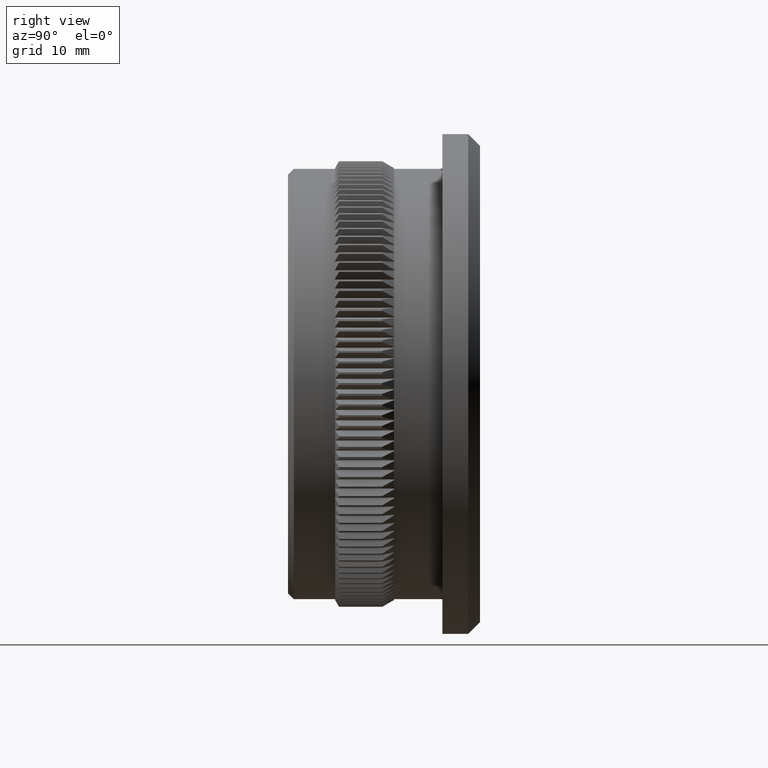
[diagram: clean part render]
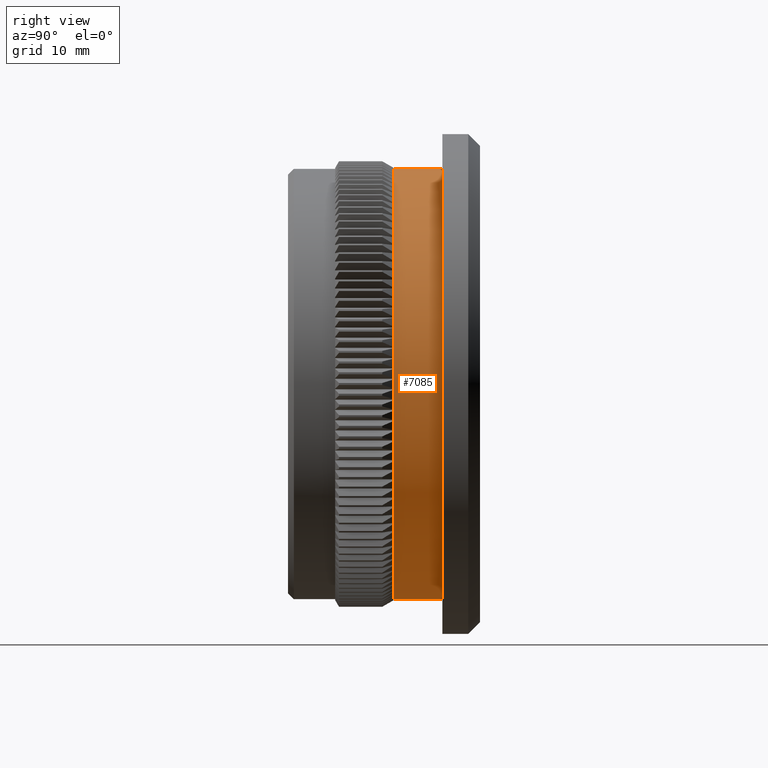
[diagram: same view with one face highlighted and labeled with its STEP entity id]
A machine part, right view. The second image highlights one B-rep face of the part: STEP entity #7085.
In plain terms, the highlighted cylindrical surface (partial cylindrical patch) has radius 18.25 mm, axis along (-0, -1, -0).
Its self-contained STEP definition (entity closure, byte-faithful):
#16 = EDGE_CURVE ( 'NONE', #13588, #38691, #28663, .T. ) ;
#77 = DIRECTION ( 'NONE',  ( 0.0000000000000000000, 0.0000000000000000000, -1.000000000000000000 ) ) ;
#107 = DIRECTION ( 'NONE',  ( -0.0000000000000000000, -1.000000000000000000, -0.0000000000000000000 ) ) ;
#271 = ORIENTED_EDGE ( 'NONE', *, *, #12573, .T. ) ;
#337 = ORIENTED_EDGE ( 'NONE', *, *, #30912, .F. ) ;
#343 = DIRECTION ( 'NONE',  ( 0.0000000000000000000, 0.0000000000000000000, -1.000000000000000000 ) ) ;
#374 = DIRECTION ( 'NONE',  ( 0.0000000000000000000, 0.0000000000000000000, -1.000000000000000000 ) ) ;
#470 = VERTEX_POINT ( 'NONE', #5012 ) ;
#518 = ORIENTED_EDGE ( 'NONE', *, *, #30176, .F. ) ;
#567 = EDGE_CURVE ( 'NONE', #13295, #23457, #42540, .T. ) ;
#744 = VERTEX_POINT ( 'NONE', #30139 ) ;
#748 = CARTESIAN_POINT ( 'NONE',  ( 13.36390316540948600, 9.000000000000010700, -12.42853942285892400 ) ) ;
#806 = VERTEX_POINT ( 'NONE', #17642 ) ;
#850 = DIRECTION ( 'NONE',  ( 0.0000000000000000000, 0.0000000000000000000, -1.000000000000000000 ) ) ;
#982 = DIRECTION ( 'NONE',  ( -0.0000000000000000000, -1.000000000000000000, -0.0000000000000000000 ) ) ;
#1030 = DIRECTION ( 'NONE',  ( 0.0000000000000000000, 0.0000000000000000000, -1.000000000000000000 ) ) ;
#1032 = DIRECTION ( 'NONE',  ( 0.0000000000000000000, 0.0000000000000000000, -1.000000000000000000 ) ) ;
#1033 = CIRCLE ( 'NONE', #39811, 18.25000000000000000 ) ;
#1115 = ORIENTED_EDGE ( 'NONE', *, *, #19807, .F. ) ;
#1455 = AXIS2_PLACEMENT_3D ( 'NONE', #19332, #2383, #5475 ) ;
#1755 = VERTEX_POINT ( 'NONE', #30516 ) ;
#1781 = EDGE_CURVE ( 'NONE', #31438, #22046, #23745, .T. ) ;
#1872 = AXIS2_PLACEMENT_3D ( 'NONE', #38058, #20907, #850 ) ;
#2034 = CARTESIAN_POINT ( 'NONE',  ( 15.94991659543385000, 9.000000000000012400, 8.869197291677764400 ) ) ;
#2124 = AXIS2_PLACEMENT_3D ( 'NONE', #14407, #24797, #7973 ) ;
#2222 = CIRCLE ( 'NONE', #26717, 18.25000000000000000 ) ;
#2325 = CARTESIAN_POINT ( 'NONE',  ( 4.367510873248076700, 9.000000000000010700, -17.71968816802541700 ) ) ;
#2383 = DIRECTION ( 'NONE',  ( -0.0000000000000000000, -1.000000000000000000, -0.0000000000000000000 ) ) ;
#2393 = DIRECTION ( 'NONE',  ( 0.0000000000000000000, 0.0000000000000000000, -1.000000000000000000 ) ) ;
#2512 = CARTESIAN_POINT ( 'NONE',  ( 16.73145756452753800, 9.000000000000012400, 7.288403650074150700 ) ) ;
#2514 = AXIS2_PLACEMENT_3D ( 'NONE', #16076, #36462, #5179 ) ;
#2571 = ORIENTED_EDGE ( 'NONE', *, *, #42584, .F. ) ;
#2776 = AXIS2_PLACEMENT_3D ( 'NONE', #32191, #42190, #11778 ) ;
#2789 = LINE ( 'NONE', #38701, #23469 ) ;
#2893 = ORIENTED_EDGE ( 'NONE', *, *, #12304, .F. ) ;
#2929 = CARTESIAN_POINT ( 'NONE',  ( 6.057318319595791100, 9.000000000000010700, -17.21544059195376200 ) ) ;
#2997 = VERTEX_POINT ( 'NONE', #7744 ) ;
#3071 = CARTESIAN_POINT ( 'NONE',  ( 0.0000000000000000000, 9.000000000000012400, 0.0000000000000000000 ) ) ;
#3084 = AXIS2_PLACEMENT_3D ( 'NONE', #24391, #27517, #343 ) ;
#3137 = ORIENTED_EDGE ( 'NONE', *, *, #7671, .F. ) ;
#3258 = CARTESIAN_POINT ( 'NONE',  ( 18.20205998186972700, 9.000000000000010700, -1.321935102951964800 ) ) ;
#3261 = ORIENTED_EDGE ( 'NONE', *, *, #25742, .F. ) ;
#3324 = CARTESIAN_POINT ( 'NONE',  ( 6.881980860811988300, 9.000000000000010700, -16.90268734347936400 ) ) ;
#3347 = VERTEX_POINT ( 'NONE', #27193 ) ;
#3360 = CARTESIAN_POINT ( 'NONE',  ( 0.0000000000000000000, 9.000000000000012400, 0.0000000000000000000 ) ) ;
#3375 = VERTEX_POINT ( 'NONE', #16541 ) ;
#3377 = EDGE_CURVE ( 'NONE', #34957, #31486, #19434, .T. ) ;
#3444 = ORIENTED_EDGE ( 'NONE', *, *, #25637, .F. ) ;
#3460 = DIRECTION ( 'NONE',  ( 0.0000000000000000000, 0.0000000000000000000, -1.000000000000000000 ) ) ;
#3833 = VERTEX_POINT ( 'NONE', #9845 ) ;
#3889 = DIRECTION ( 'NONE',  ( 0.0000000000000000000, 0.0000000000000000000, -1.000000000000000000 ) ) ;
#3891 = DIRECTION ( 'NONE',  ( -0.0000000000000000000, -1.000000000000000000, -0.0000000000000000000 ) ) ;
#3980 = CARTESIAN_POINT ( 'NONE',  ( 0.0000000000000000000, 13.10000000000001200, -18.24999999999999600 ) ) ;
#4013 = VERTEX_POINT ( 'NONE', #19631 ) ;
#4019 = DIRECTION ( 'NONE',  ( 0.0000000000000000000, 0.0000000000000000000, -1.000000000000000000 ) ) ;
#4098 = EDGE_CURVE ( 'NONE', #5564, #8907, #34276, .T. ) ;
#4179 = CARTESIAN_POINT ( 'NONE',  ( 11.42787985507404600, 9.000000000000010700, 14.22905696165396000 ) ) ;
#4253 = ORIENTED_EDGE ( 'NONE', *, *, #14989, .F. ) ;
#4282 = CARTESIAN_POINT ( 'NONE',  ( 13.94876189996184300, 9.000000000000010700, -11.76837038243498800 ) ) ;
#4284 = AXIS2_PLACEMENT_3D ( 'NONE', #42932, #9095, #39647 ) ;
#4305 = CARTESIAN_POINT ( 'NONE',  ( 17.60897884851976200, 9.000000000000012400, 4.794409652124421900 ) ) ;
#4327 = DIRECTION ( 'NONE',  ( -0.0000000000000000000, -1.000000000000000000, -0.0000000000000000000 ) ) ;
#4365 = ORIENTED_EDGE ( 'NONE', *, *, #23403, .F. ) ;
#4404 = ORIENTED_EDGE ( 'NONE', *, *, #6890, .F. ) ;
#4429 = DIRECTION ( 'NONE',  ( 0.0000000000000000000, 0.0000000000000000000, -1.000000000000000000 ) ) ;
#4556 = CARTESIAN_POINT ( 'NONE',  ( 0.0000000000000000000, 9.000000000000012400, 0.0000000000000000000 ) ) ;
#4590 = CARTESIAN_POINT ( 'NONE',  ( 17.60897884851986500, 9.000000000000012400, -4.794409652124029400 ) ) ;
#4641 = VERTEX_POINT ( 'NONE', #6313 ) ;
#4676 = ORIENTED_EDGE ( 'NONE', *, *, #3377, .F. ) ;
#4741 = CIRCLE ( 'NONE', #43234, 18.25000000000000000 ) ;
#4770 = ORIENTED_EDGE ( 'NONE', *, *, #34346, .F. ) ;
#4824 = CARTESIAN_POINT ( 'NONE',  ( 2.636925154638434700, 9.000000000000010700, -18.05849178998166600 ) ) ;
#4842 = DIRECTION ( 'NONE',  ( -0.0000000000000000000, -1.000000000000000000, -0.0000000000000000000 ) ) ;
#4853 = ORIENTED_EDGE ( 'NONE', *, *, #25097, .F. ) ;
#4870 = CARTESIAN_POINT ( 'NONE',  ( 17.98950097700266000, 9.000000000000010700, -3.072516004583262900 ) ) ;
#4888 = CIRCLE ( 'NONE', #27488, 18.25000000000000000 ) ;
#4907 = DIRECTION ( 'NONE',  ( 0.0000000000000000000, 0.0000000000000000000, -1.000000000000000000 ) ) ;
#4971 = AXIS2_PLACEMENT_3D ( 'NONE', #8420, #25245, #15317 ) ;
#4996 = DIRECTION ( 'NONE',  ( 0.0000000000000000000, 0.0000000000000000000, -1.000000000000000000 ) ) ;
#5012 = CARTESIAN_POINT ( 'NONE',  ( 5.218508630776227600, 9.000000000000010700, -17.48798638124224400 ) ) ;
#5081 = DIRECTION ( 'NONE',  ( -0.0000000000000000000, -1.000000000000000000, -0.0000000000000000000 ) ) ;
#5140 = CIRCLE ( 'NONE', #15951, 18.25000000000000000 ) ;
#5145 = CIRCLE ( 'NONE', #38885, 18.25000000000000000 ) ;
#5179 = DIRECTION ( 'NONE',  ( 0.0000000000000000000, 0.0000000000000000000, -1.000000000000000000 ) ) ;
#5245 = EDGE_CURVE ( 'NONE', #28468, #22867, #22457, .T. ) ;
#5280 = CARTESIAN_POINT ( 'NONE',  ( 0.0000000000000000000, 9.000000000000012400, 0.0000000000000000000 ) ) ;
#5286 = DIRECTION ( 'NONE',  ( -0.0000000000000000000, -1.000000000000000000, -0.0000000000000000000 ) ) ;
#5326 = DIRECTION ( 'NONE',  ( 0.0000000000000000000, 0.0000000000000000000, -1.000000000000000000 ) ) ;
#5388 = CIRCLE ( 'NONE', #15828, 18.25000000000000000 ) ;
#5400 = ORIENTED_EDGE ( 'NONE', *, *, #5245, .F. ) ;
#5475 = DIRECTION ( 'NONE',  ( 0.0000000000000000000, 0.0000000000000000000, -1.000000000000000000 ) ) ;
#5478 = ORIENTED_EDGE ( 'NONE', *, *, #567, .F. ) ;
#5564 = VERTEX_POINT ( 'NONE', #19867 ) ;
#5587 = CARTESIAN_POINT ( 'NONE',  ( 0.0000000000000000000, 9.000000000000012400, 0.0000000000000000000 ) ) ;
#5605 = AXIS2_PLACEMENT_3D ( 'NONE', #8488, #25909, #21577 ) ;
#5655 = AXIS2_PLACEMENT_3D ( 'NONE', #25654, #5286, #29095 ) ;
#5772 = CIRCLE ( 'NONE', #5605, 18.25000000000000000 ) ;
#5900 = CARTESIAN_POINT ( 'NONE',  ( 0.8817191763406456700, 9.000000000000010700, -18.22868813968996100 ) ) ;
#6282 = CARTESIAN_POINT ( 'NONE',  ( 0.0000000000000000000, 9.000000000000012400, 0.0000000000000000000 ) ) ;
#6313 = CARTESIAN_POINT ( 'NONE',  ( 1.761379056689640600, 9.000000000000010700, 18.16480233359711600 ) ) ;
#6605 = ORIENTED_EDGE ( 'NONE', *, *, #36889, .F. ) ;
#6619 = DIRECTION ( 'NONE',  ( -0.0000000000000000000, -1.000000000000000000, -0.0000000000000000000 ) ) ;
#6630 = EDGE_CURVE ( 'NONE', #15829, #37151, #5388, .T. ) ;
#6635 = DIRECTION ( 'NONE',  ( 0.0000000000000000000, 0.0000000000000000000, -1.000000000000000000 ) ) ;
#6648 = AXIS2_PLACEMENT_3D ( 'NONE', #13367, #34056, #13684 ) ;
#6731 = EDGE_CURVE ( 'NONE', #22586, #3347, #42710, .T. ) ;
#6783 = DIRECTION ( 'NONE',  ( -0.0000000000000000000, -1.000000000000000000, -0.0000000000000000000 ) ) ;
#6854 = AXIS2_PLACEMENT_3D ( 'NONE', #5280, #42659, #42511 ) ;
#6890 = EDGE_CURVE ( 'NONE', #38066, #9116, #4888, .T. ) ;
#6891 = DIRECTION ( 'NONE',  ( -0.0000000000000000000, -1.000000000000000000, -0.0000000000000000000 ) ) ;
#6909 = CARTESIAN_POINT ( 'NONE',  ( 1.156482317317873700E-014, 9.000000000000010700, -18.25000000000000400 ) ) ;
#7013 = AXIS2_PLACEMENT_3D ( 'NONE', #37137, #6891, #43819 ) ;
#7042 = AXIS2_PLACEMENT_3D ( 'NONE', #33463, #13357, #36904 ) ;
#7085 = ADVANCED_FACE ( 'NONE', ( #35805 ), #8591, .T. ) ;
#7412 = CARTESIAN_POINT ( 'NONE',  ( 1.761379056690044200, 9.000000000000010700, -18.16480233359707300 ) ) ;
#7491 = AXIS2_PLACEMENT_3D ( 'NONE', #6282, #40964, #3889 ) ;
#7536 = CARTESIAN_POINT ( 'NONE',  ( 0.0000000000000000000, 9.000000000000012400, 0.0000000000000000000 ) ) ;
#7543 = AXIS2_PLACEMENT_3D ( 'NONE', #26360, #26645, #40389 ) ;
#7551 = CARTESIAN_POINT ( 'NONE',  ( 0.0000000000000000000, 9.000000000000012400, 0.0000000000000000000 ) ) ;
#7619 = CIRCLE ( 'NONE', #21354, 18.25000000000000000 ) ;
#7671 = EDGE_CURVE ( 'NONE', #8907, #31396, #22929, .T. ) ;
#7744 = CARTESIAN_POINT ( 'NONE',  ( 17.98950097700259900, 9.000000000000012400, 3.072516004583662600 ) ) ;
#7799 = EDGE_CURVE ( 'NONE', #23704, #806, #26107, .T. ) ;
#7885 = DIRECTION ( 'NONE',  ( 0.0000000000000000000, 0.0000000000000000000, -1.000000000000000000 ) ) ;
#7973 = DIRECTION ( 'NONE',  ( 0.0000000000000000000, 0.0000000000000000000, -1.000000000000000000 ) ) ;
#8181 = AXIS2_PLACEMENT_3D ( 'NONE', #38834, #14858, #4429 ) ;
#8243 = EDGE_CURVE ( 'NONE', #28902, #30934, #21248, .T. ) ;
#8262 = AXIS2_PLACEMENT_3D ( 'NONE', #42351, #11521, #8683 ) ;
#8420 = CARTESIAN_POINT ( 'NONE',  ( 0.0000000000000000000, 9.000000000000012400, 0.0000000000000000000 ) ) ;
#8431 = EDGE_CURVE ( 'NONE', #30934, #17959, #29822, .T. ) ;
#8446 = AXIS2_PLACEMENT_3D ( 'NONE', #9088, #18793, #22463 ) ;
#8465 = CIRCLE ( 'NONE', #13987, 18.25000000000000000 ) ;
#8488 = CARTESIAN_POINT ( 'NONE',  ( 0.0000000000000000000, 9.000000000000012400, 0.0000000000000000000 ) ) ;
#8500 = CIRCLE ( 'NONE', #12127, 18.25000000000000000 ) ;
#8563 = ORIENTED_EDGE ( 'NONE', *, *, #18140, .F. ) ;
#8585 = EDGE_CURVE ( 'NONE', #40925, #1755, #28175, .T. ) ;
#8591 = CYLINDRICAL_SURFACE ( 'NONE', #32074, 18.24999999999999600 ) ;
#8620 = EDGE_CURVE ( 'NONE', #744, #14084, #8500, .T. ) ;
#8683 = DIRECTION ( 'NONE',  ( 0.0000000000000000000, 0.0000000000000000000, -1.000000000000000000 ) ) ;
#8709 = VERTEX_POINT ( 'NONE', #13083 ) ;
#8873 = CARTESIAN_POINT ( 'NONE',  ( 12.10198851289434300, 9.000000000000010700, 13.66032115412274600 ) ) ;
#8907 = VERTEX_POINT ( 'NONE', #36228 ) ;
#8911 = DIRECTION ( 'NONE',  ( 0.0000000000000000000, 0.0000000000000000000, -1.000000000000000000 ) ) ;
#8928 = AXIS2_PLACEMENT_3D ( 'NONE', #43730, #16975, #40772 ) ;
#9038 = ORIENTED_EDGE ( 'NONE', *, *, #9431, .F. ) ;
#9071 = CARTESIAN_POINT ( 'NONE',  ( 14.50104265477612100, 9.000000000000010700, -11.08071576769134500 ) ) ;
#9088 = CARTESIAN_POINT ( 'NONE',  ( 0.0000000000000000000, 9.000000000000012400, 0.0000000000000000000 ) ) ;
#9095 = DIRECTION ( 'NONE',  ( -0.0000000000000000000, -1.000000000000000000, -0.0000000000000000000 ) ) ;
#9116 = VERTEX_POINT ( 'NONE', #4305 ) ;
#9259 = DIRECTION ( 'NONE',  ( -0.0000000000000000000, -1.000000000000000000, -0.0000000000000000000 ) ) ;
#9431 = EDGE_CURVE ( 'NONE', #4013, #24791, #12538, .T. ) ;
#9707 = AXIS2_PLACEMENT_3D ( 'NONE', #14797, #39064, #42194 ) ;
#9721 = VERTEX_POINT ( 'NONE', #3980 ) ;
#9845 = CARTESIAN_POINT ( 'NONE',  ( 2.234980408443918800E-015, 13.10000000000001200, 18.24999999999999600 ) ) ;
#9865 = CARTESIAN_POINT ( 'NONE',  ( 13.94876189996158900, 9.000000000000010700, 11.76837038243528400 ) ) ;
#9886 = DIRECTION ( 'NONE',  ( 0.0000000000000000000, 0.0000000000000000000, -1.000000000000000000 ) ) ;
#9941 = CARTESIAN_POINT ( 'NONE',  ( 8.481197889798915300, 9.000000000000010700, -16.15957246817101400 ) ) ;
#10018 = DIRECTION ( 'NONE',  ( 0.0000000000000000000, 0.0000000000000000000, -1.000000000000000000 ) ) ;
#10114 = DIRECTION ( 'NONE',  ( -0.0000000000000000000, -1.000000000000000000, -0.0000000000000000000 ) ) ;
#10169 = DIRECTION ( 'NONE',  ( -0.0000000000000000000, -1.000000000000000000, -0.0000000000000000000 ) ) ;
#10236 = ORIENTED_EDGE ( 'NONE', *, *, #17520, .F. ) ;
#10553 = DIRECTION ( 'NONE',  ( -0.0000000000000000000, -1.000000000000000000, -0.0000000000000000000 ) ) ;
#10604 = VERTEX_POINT ( 'NONE', #5900 ) ;
#10673 = DIRECTION ( 'NONE',  ( 0.0000000000000000000, 0.0000000000000000000, -1.000000000000000000 ) ) ;
#10683 = CARTESIAN_POINT ( 'NONE',  ( 0.0000000000000000000, 9.000000000000012400, 0.0000000000000000000 ) ) ;
#10726 = DIRECTION ( 'NONE',  ( 0.0000000000000000000, 0.0000000000000000000, -1.000000000000000000 ) ) ;
#10848 = DIRECTION ( 'NONE',  ( 0.0000000000000000000, 0.0000000000000000000, -1.000000000000000000 ) ) ;
#11176 = VERTEX_POINT ( 'NONE', #19704 ) ;
#11257 = DIRECTION ( 'NONE',  ( -0.0000000000000000000, -1.000000000000000000, -0.0000000000000000000 ) ) ;
#11521 = DIRECTION ( 'NONE',  ( -0.0000000000000000000, -1.000000000000000000, -0.0000000000000000000 ) ) ;
#11633 = CIRCLE ( 'NONE', #20659, 18.25000000000000000 ) ;
#11655 = DIRECTION ( 'NONE',  ( -0.0000000000000000000, -1.000000000000000000, -0.0000000000000000000 ) ) ;
#11705 = VERTEX_POINT ( 'NONE', #34976 ) ;
#11721 = AXIS2_PLACEMENT_3D ( 'NONE', #14280, #11257, #24497 ) ;
#11778 = DIRECTION ( 'NONE',  ( 0.0000000000000000000, 0.0000000000000000000, -1.000000000000000000 ) ) ;
#11781 = CARTESIAN_POINT ( 'NONE',  ( 6.881980860811620600, 9.000000000000010700, 16.90268734347951700 ) ) ;
#11850 = AXIS2_PLACEMENT_3D ( 'NONE', #14446, #43761, #33947 ) ;
#11994 = DIRECTION ( 'NONE',  ( -0.0000000000000000000, -1.000000000000000000, -0.0000000000000000000 ) ) ;
#12127 = AXIS2_PLACEMENT_3D ( 'NONE', #36192, #15803, #39599 ) ;
#12257 = AXIS2_PLACEMENT_3D ( 'NONE', #34748, #41321, #41028 ) ;
#12304 = EDGE_CURVE ( 'NONE', #23733, #4013, #39506, .T. ) ;
#12360 = EDGE_CURVE ( 'NONE', #32399, #17915, #15555, .T. ) ;
#12385 = VERTEX_POINT ( 'NONE', #7412 ) ;
#12410 = EDGE_CURVE ( 'NONE', #31396, #21885, #30409, .T. ) ;
#12450 = EDGE_CURVE ( 'NONE', #19939, #23663, #2222, .T. ) ;
#12535 = AXIS2_PLACEMENT_3D ( 'NONE', #15768, #42851, #39566 ) ;
#12538 = CIRCLE ( 'NONE', #1455, 18.25000000000000000 ) ;
#12573 = EDGE_CURVE ( 'NONE', #3833, #17915, #2789, .T. ) ;
#12638 = EDGE_CURVE ( 'NONE', #3375, #40925, #34649, .T. ) ;
#12718 = CARTESIAN_POINT ( 'NONE',  ( 15.94991659543403600, 9.000000000000010700, -8.869197291677407300 ) ) ;
#12751 = CARTESIAN_POINT ( 'NONE',  ( 12.74783241579293900, 9.000000000000010700, 13.05968103358037000 ) ) ;
#12774 = EDGE_CURVE ( 'NONE', #17959, #2997, #20793, .T. ) ;
#12790 = ORIENTED_EDGE ( 'NONE', *, *, #12410, .F. ) ;
#12939 = ORIENTED_EDGE ( 'NONE', *, *, #8243, .F. ) ;
#13083 = CARTESIAN_POINT ( 'NONE',  ( 16.35979160564649600, 9.000000000000010700, 8.088245707186359800 ) ) ;
#13229 = ORIENTED_EDGE ( 'NONE', *, *, #22450, .F. ) ;
#13295 = VERTEX_POINT ( 'NONE', #748 ) ;
#13327 = DIRECTION ( 'NONE',  ( 0.0000000000000000000, 0.0000000000000000000, -1.000000000000000000 ) ) ;
#13357 = DIRECTION ( 'NONE',  ( -0.0000000000000000000, -1.000000000000000000, -0.0000000000000000000 ) ) ;
#13367 = CARTESIAN_POINT ( 'NONE',  ( 0.0000000000000000000, 13.10000000000001200, 0.0000000000000000000 ) ) ;
#13542 = DIRECTION ( 'NONE',  ( 0.0000000000000000000, 0.0000000000000000000, -1.000000000000000000 ) ) ;
#13588 = VERTEX_POINT ( 'NONE', #39581 ) ;
#13650 = AXIS2_PLACEMENT_3D ( 'NONE', #34412, #17467, #23951 ) ;
#13684 = DIRECTION ( 'NONE',  ( 0.0000000000000000000, 0.0000000000000000000, -1.000000000000000000 ) ) ;
#13830 = EDGE_CURVE ( 'NONE', #2997, #38066, #24461, .T. ) ;
#13856 = CARTESIAN_POINT ( 'NONE',  ( 0.0000000000000000000, 9.000000000000012400, 0.0000000000000000000 ) ) ;
#13906 = CIRCLE ( 'NONE', #31587, 18.25000000000000000 ) ;
#13987 = AXIS2_PLACEMENT_3D ( 'NONE', #26002, #15329, #5326 ) ;
#14033 = CARTESIAN_POINT ( 'NONE',  ( 15.01945555255932900, 9.000000000000010700, -10.36718162784345400 ) ) ;
#14057 = ORIENTED_EDGE ( 'NONE', *, *, #20616, .F. ) ;
#14084 = VERTEX_POINT ( 'NONE', #34224 ) ;
#14111 = AXIS2_PLACEMENT_3D ( 'NONE', #25284, #25426, #4907 ) ;
#14141 = DIRECTION ( 'NONE',  ( -0.0000000000000000000, -1.000000000000000000, -0.0000000000000000000 ) ) ;
#14280 = CARTESIAN_POINT ( 'NONE',  ( 0.0000000000000000000, 9.000000000000012400, 0.0000000000000000000 ) ) ;
#14361 = EDGE_CURVE ( 'NONE', #24100, #26718, #8465, .T. ) ;
#14394 = ORIENTED_EDGE ( 'NONE', *, *, #12450, .F. ) ;
#14407 = CARTESIAN_POINT ( 'NONE',  ( 0.0000000000000000000, 9.000000000000012400, 0.0000000000000000000 ) ) ;
#14446 = CARTESIAN_POINT ( 'NONE',  ( 0.0000000000000000000, 9.000000000000012400, 0.0000000000000000000 ) ) ;
#14661 = CIRCLE ( 'NONE', #12535, 18.25000000000000000 ) ;
#14702 = CIRCLE ( 'NONE', #19650, 18.25000000000000000 ) ;
#14707 = DIRECTION ( 'NONE',  ( -0.0000000000000000000, -1.000000000000000000, -0.0000000000000000000 ) ) ;
#14771 = ORIENTED_EDGE ( 'NONE', *, *, #21765, .F. ) ;
#14797 = CARTESIAN_POINT ( 'NONE',  ( 0.0000000000000000000, 9.000000000000012400, 0.0000000000000000000 ) ) ;
#14858 = DIRECTION ( 'NONE',  ( -0.0000000000000000000, -1.000000000000000000, -0.0000000000000000000 ) ) ;
#14893 = ORIENTED_EDGE ( 'NONE', *, *, #18722, .F. ) ;
#14989 = EDGE_CURVE ( 'NONE', #22867, #17450, #32402, .T. ) ;
#15040 = ORIENTED_EDGE ( 'NONE', *, *, #40080, .F. ) ;
#15046 = CIRCLE ( 'NONE', #3084, 18.25000000000000000 ) ;
#15131 = ORIENTED_EDGE ( 'NONE', *, *, #42647, .F. ) ;
#15317 = DIRECTION ( 'NONE',  ( 0.0000000000000000000, 0.0000000000000000000, -1.000000000000000000 ) ) ;
#15329 = DIRECTION ( 'NONE',  ( -0.0000000000000000000, -1.000000000000000000, -0.0000000000000000000 ) ) ;
#15487 = AXIS2_PLACEMENT_3D ( 'NONE', #10683, #14141, #17268 ) ;
#15507 = LINE ( 'NONE', #35808, #18128 ) ;
#15526 = CIRCLE ( 'NONE', #43690, 18.25000000000000000 ) ;
#15555 = CIRCLE ( 'NONE', #30688, 18.25000000000000000 ) ;
#15557 = CARTESIAN_POINT ( 'NONE',  ( 16.73145756452770900, 9.000000000000012400, -7.288403650073777700 ) ) ;
#15691 = VERTEX_POINT ( 'NONE', #4870 ) ;
#15768 = CARTESIAN_POINT ( 'NONE',  ( 0.0000000000000000000, 9.000000000000012400, 0.0000000000000000000 ) ) ;
#15803 = DIRECTION ( 'NONE',  ( -0.0000000000000000000, -1.000000000000000000, -0.0000000000000000000 ) ) ;
#15828 = AXIS2_PLACEMENT_3D ( 'NONE', #29836, #33867, #10018 ) ;
#15829 = VERTEX_POINT ( 'NONE', #29856 ) ;
#15951 = AXIS2_PLACEMENT_3D ( 'NONE', #35411, #38687, #1032 ) ;
#16042 = CARTESIAN_POINT ( 'NONE',  ( 0.0000000000000000000, 9.000000000000012400, 0.0000000000000000000 ) ) ;
#16076 = CARTESIAN_POINT ( 'NONE',  ( 0.0000000000000000000, 9.000000000000012400, 0.0000000000000000000 ) ) ;
#16202 = ORIENTED_EDGE ( 'NONE', *, *, #19474, .F. ) ;
#16206 = CARTESIAN_POINT ( 'NONE',  ( 10.00122825922286100, 9.000000000000010700, -15.26558001868655300 ) ) ;
#16245 = VERTEX_POINT ( 'NONE', #12718 ) ;
#16338 = CIRCLE ( 'NONE', #21982, 18.25000000000000000 ) ;
#16357 = DIRECTION ( 'NONE',  ( -0.0000000000000000000, -1.000000000000000000, -0.0000000000000000000 ) ) ;
#16541 = CARTESIAN_POINT ( 'NONE',  ( 17.35678142238661400, 9.000000000000010700, -5.639560147342613100 ) ) ;
#16548 = CARTESIAN_POINT ( 'NONE',  ( 0.0000000000000000000, 9.000000000000012400, 0.0000000000000000000 ) ) ;
#16915 = VERTEX_POINT ( 'NONE', #44054 ) ;
#16937 = ORIENTED_EDGE ( 'NONE', *, *, #26566, .F. ) ;
#16975 = DIRECTION ( 'NONE',  ( -0.0000000000000000000, -1.000000000000000000, -0.0000000000000000000 ) ) ;
#17041 = DIRECTION ( 'NONE',  ( 0.0000000000000000000, 0.0000000000000000000, -1.000000000000000000 ) ) ;
#17268 = DIRECTION ( 'NONE',  ( 0.0000000000000000000, 0.0000000000000000000, -1.000000000000000000 ) ) ;
#17379 = ORIENTED_EDGE ( 'NONE', *, *, #12774, .F. ) ;
#17450 = VERTEX_POINT ( 'NONE', #40675 ) ;
#17459 = ORIENTED_EDGE ( 'NONE', *, *, #6731, .F. ) ;
#17467 = DIRECTION ( 'NONE',  ( -0.0000000000000000000, -1.000000000000000000, -0.0000000000000000000 ) ) ;
#17520 = EDGE_CURVE ( 'NONE', #15691, #43011, #22716, .T. ) ;
#17546 = EDGE_CURVE ( 'NONE', #4641, #32399, #5145, .T. ) ;
#17621 = AXIS2_PLACEMENT_3D ( 'NONE', #41232, #41657, #4019 ) ;
#17642 = CARTESIAN_POINT ( 'NONE',  ( 10.72708085433776800, 9.000000000000010700, -14.76456014734269600 ) ) ;
#17915 = VERTEX_POINT ( 'NONE', #40635 ) ;
#17959 = VERTEX_POINT ( 'NONE', #37215 ) ;
#18034 = CARTESIAN_POINT ( 'NONE',  ( 0.0000000000000000000, 9.000000000000012400, 0.0000000000000000000 ) ) ;
#18056 = EDGE_CURVE ( 'NONE', #43098, #32541, #37067, .T. ) ;
#18078 = DIRECTION ( 'NONE',  ( 0.0000000000000000000, 0.0000000000000000000, -1.000000000000000000 ) ) ;
#18128 = VECTOR ( 'NONE', #9259, 1000.000000000000000 ) ;
#18140 = EDGE_CURVE ( 'NONE', #43011, #34957, #20549, .T. ) ;
#18185 = CIRCLE ( 'NONE', #38561, 18.25000000000000000 ) ;
#18274 = DIRECTION ( 'NONE',  ( -0.0000000000000000000, -1.000000000000000000, -0.0000000000000000000 ) ) ;
#18343 = DIRECTION ( 'NONE',  ( 0.0000000000000000000, 0.0000000000000000000, -1.000000000000000000 ) ) ;
#18407 = AXIS2_PLACEMENT_3D ( 'NONE', #31258, #40974, #10726 ) ;
#18467 = VERTEX_POINT ( 'NONE', #6909 ) ;
#18722 = EDGE_CURVE ( 'NONE', #22511, #13588, #38207, .T. ) ;
#18793 = DIRECTION ( 'NONE',  ( -0.0000000000000000000, -1.000000000000000000, -0.0000000000000000000 ) ) ;
#19007 = ORIENTED_EDGE ( 'NONE', *, *, #23472, .F. ) ;
#19201 = CARTESIAN_POINT ( 'NONE',  ( 0.0000000000000000000, 9.000000000000012400, 0.0000000000000000000 ) ) ;
#19329 = CIRCLE ( 'NONE', #28996, 18.25000000000000000 ) ;
#19332 = CARTESIAN_POINT ( 'NONE',  ( 0.0000000000000000000, 9.000000000000012400, 0.0000000000000000000 ) ) ;
#19414 = CARTESIAN_POINT ( 'NONE',  ( 16.35979160564667400, 9.000000000000010700, -8.088245707185993900 ) ) ;
#19434 = CIRCLE ( 'NONE', #31547, 18.25000000000000000 ) ;
#19436 = EDGE_CURVE ( 'NONE', #3347, #13295, #14702, .T. ) ;
#19474 = EDGE_CURVE ( 'NONE', #8709, #43098, #38149, .T. ) ;
#19631 = CARTESIAN_POINT ( 'NONE',  ( 3.506312591704927600, 9.000000000000010700, 17.91000480204434800 ) ) ;
#19650 = AXIS2_PLACEMENT_3D ( 'NONE', #41150, #34147, #9886 ) ;
#19704 = CARTESIAN_POINT ( 'NONE',  ( 13.36390316540921600, 9.000000000000010700, 12.42853942285921300 ) ) ;
#19807 = EDGE_CURVE ( 'NONE', #38691, #23733, #14661, .T. ) ;
#19828 = AXIS2_PLACEMENT_3D ( 'NONE', #35105, #14707, #21652 ) ;
#19867 = CARTESIAN_POINT ( 'NONE',  ( 10.00122825922253100, 9.000000000000010700, 15.26558001868676800 ) ) ;
#19939 = VERTEX_POINT ( 'NONE', #12751 ) ;
#19984 = VERTEX_POINT ( 'NONE', #2512 ) ;
#20128 = EDGE_CURVE ( 'NONE', #17450, #23235, #40765, .T. ) ;
#20158 = DIRECTION ( 'NONE',  ( 0.0000000000000000000, 0.0000000000000000000, -1.000000000000000000 ) ) ;
#20232 = DIRECTION ( 'NONE',  ( -0.0000000000000000000, -1.000000000000000000, -0.0000000000000000000 ) ) ;
#20270 = CIRCLE ( 'NONE', #11721, 18.25000000000000000 ) ;
#20434 = DIRECTION ( 'NONE',  ( -0.0000000000000000000, -1.000000000000000000, -0.0000000000000000000 ) ) ;
#20436 = ORIENTED_EDGE ( 'NONE', *, *, #16, .F. ) ;
#20549 = CIRCLE ( 'NONE', #30315, 18.25000000000000000 ) ;
#20616 = EDGE_CURVE ( 'NONE', #11705, #5564, #34337, .T. ) ;
#20659 = AXIS2_PLACEMENT_3D ( 'NONE', #16042, #43382, #23263 ) ;
#20775 = CARTESIAN_POINT ( 'NONE',  ( 0.0000000000000000000, 9.000000000000012400, 0.0000000000000000000 ) ) ;
#20793 = CIRCLE ( 'NONE', #13650, 18.25000000000000000 ) ;
#20907 = DIRECTION ( 'NONE',  ( -0.0000000000000000000, -1.000000000000000000, -0.0000000000000000000 ) ) ;
#20970 = VERTEX_POINT ( 'NONE', #43616 ) ;
#21071 = CIRCLE ( 'NONE', #23312, 18.25000000000000000 ) ;
#21248 = CIRCLE ( 'NONE', #2776, 18.25000000000000000 ) ;
#21311 = CARTESIAN_POINT ( 'NONE',  ( 0.0000000000000000000, 9.000000000000012400, 0.0000000000000000000 ) ) ;
#21354 = AXIS2_PLACEMENT_3D ( 'NONE', #21311, #982, #18078 ) ;
#21577 = DIRECTION ( 'NONE',  ( 0.0000000000000000000, 0.0000000000000000000, -1.000000000000000000 ) ) ;
#21648 = EDGE_CURVE ( 'NONE', #21912, #24100, #35906, .T. ) ;
#21652 = DIRECTION ( 'NONE',  ( 0.0000000000000000000, 0.0000000000000000000, -1.000000000000000000 ) ) ;
#21765 = EDGE_CURVE ( 'NONE', #39430, #470, #7619, .T. ) ;
#21771 = EDGE_CURVE ( 'NONE', #10604, #12385, #39610, .T. ) ;
#21885 = VERTEX_POINT ( 'NONE', #40256 ) ;
#21912 = VERTEX_POINT ( 'NONE', #19414 ) ;
#21982 = AXIS2_PLACEMENT_3D ( 'NONE', #42607, #5081, #22163 ) ;
#22010 = CARTESIAN_POINT ( 'NONE',  ( 8.481197889798561800, 9.000000000000010700, 16.15957246817119500 ) ) ;
#22046 = VERTEX_POINT ( 'NONE', #14033 ) ;
#22050 = CARTESIAN_POINT ( 'NONE',  ( 0.0000000000000000000, 9.000000000000012400, 0.0000000000000000000 ) ) ;
#22163 = DIRECTION ( 'NONE',  ( 0.0000000000000000000, 0.0000000000000000000, -1.000000000000000000 ) ) ;
#22201 = ORIENTED_EDGE ( 'NONE', *, *, #7799, .F. ) ;
#22243 = EDGE_CURVE ( 'NONE', #43555, #23704, #23032, .T. ) ;
#22258 = CARTESIAN_POINT ( 'NONE',  ( 0.0000000000000000000, 9.000000000000012400, 0.0000000000000000000 ) ) ;
#22290 = CARTESIAN_POINT ( 'NONE',  ( 0.0000000000000000000, 9.000000000000012400, 0.0000000000000000000 ) ) ;
#22450 = EDGE_CURVE ( 'NONE', #31486, #28902, #25128, .T. ) ;
#22457 = CIRCLE ( 'NONE', #11850, 18.25000000000000000 ) ;
#22463 = DIRECTION ( 'NONE',  ( 0.0000000000000000000, 0.0000000000000000000, -1.000000000000000000 ) ) ;
#22511 = VERTEX_POINT ( 'NONE', #11781 ) ;
#22586 = VERTEX_POINT ( 'NONE', #41900 ) ;
#22716 = CIRCLE ( 'NONE', #40337, 18.25000000000000000 ) ;
#22867 = VERTEX_POINT ( 'NONE', #3324 ) ;
#22899 = EDGE_CURVE ( 'NONE', #23663, #30023, #18185, .T. ) ;
#22929 = CIRCLE ( 'NONE', #25228, 18.25000000000000000 ) ;
#23032 = CIRCLE ( 'NONE', #42538, 18.25000000000000000 ) ;
#23235 = VERTEX_POINT ( 'NONE', #9941 ) ;
#23263 = DIRECTION ( 'NONE',  ( 0.0000000000000000000, 0.0000000000000000000, -1.000000000000000000 ) ) ;
#23312 = AXIS2_PLACEMENT_3D ( 'NONE', #34043, #6783, #37038 ) ;
#23403 = EDGE_CURVE ( 'NONE', #32541, #744, #38415, .T. ) ;
#23457 = VERTEX_POINT ( 'NONE', #4282 ) ;
#23469 = VECTOR ( 'NONE', #18274, 1000.000000000000000 ) ;
#23472 = EDGE_CURVE ( 'NONE', #37151, #19984, #20270, .T. ) ;
#23534 = EDGE_CURVE ( 'NONE', #22046, #20970, #15526, .T. ) ;
#23639 = DIRECTION ( 'NONE',  ( 0.0000000000000000000, 0.0000000000000000000, -1.000000000000000000 ) ) ;
#23663 = VERTEX_POINT ( 'NONE', #8873 ) ;
#23685 = AXIS2_PLACEMENT_3D ( 'NONE', #42620, #39636, #43067 ) ;
#23704 = VERTEX_POINT ( 'NONE', #16206 ) ;
#23733 = VERTEX_POINT ( 'NONE', #26559 ) ;
#23745 = CIRCLE ( 'NONE', #18407, 18.25000000000000000 ) ;
#23858 = DIRECTION ( 'NONE',  ( 0.0000000000000000000, 0.0000000000000000000, -1.000000000000000000 ) ) ;
#23951 = DIRECTION ( 'NONE',  ( 0.0000000000000000000, 0.0000000000000000000, -1.000000000000000000 ) ) ;
#24100 = VERTEX_POINT ( 'NONE', #15557 ) ;
#24124 = VERTEX_POINT ( 'NONE', #36826 ) ;
#24144 = EDGE_CURVE ( 'NONE', #9721, #18467, #15507, .T. ) ;
#24391 = CARTESIAN_POINT ( 'NONE',  ( 0.0000000000000000000, 9.000000000000012400, 0.0000000000000000000 ) ) ;
#24424 = CARTESIAN_POINT ( 'NONE',  ( 0.0000000000000000000, 9.000000000000012400, 0.0000000000000000000 ) ) ;
#24461 = CIRCLE ( 'NONE', #6854, 18.25000000000000000 ) ;
#24497 = DIRECTION ( 'NONE',  ( 0.0000000000000000000, 0.0000000000000000000, -1.000000000000000000 ) ) ;
#24700 = ORIENTED_EDGE ( 'NONE', *, *, #4098, .F. ) ;
#24791 = VERTEX_POINT ( 'NONE', #40096 ) ;
#24797 = DIRECTION ( 'NONE',  ( -0.0000000000000000000, -1.000000000000000000, -0.0000000000000000000 ) ) ;
#24847 = ORIENTED_EDGE ( 'NONE', *, *, #6630, .F. ) ;
#25097 = EDGE_CURVE ( 'NONE', #18467, #10604, #39953, .T. ) ;
#25100 = DIRECTION ( 'NONE',  ( 0.0000000000000000000, 0.0000000000000000000, -1.000000000000000000 ) ) ;
#25128 = CIRCLE ( 'NONE', #9707, 18.25000000000000000 ) ;
#25228 = AXIS2_PLACEMENT_3D ( 'NONE', #20775, #31205, #10673 ) ;
#25245 = DIRECTION ( 'NONE',  ( -0.0000000000000000000, -1.000000000000000000, -0.0000000000000000000 ) ) ;
#25284 = CARTESIAN_POINT ( 'NONE',  ( 0.0000000000000000000, 9.000000000000012400, 0.0000000000000000000 ) ) ;
#25302 = ORIENTED_EDGE ( 'NONE', *, *, #31078, .F. ) ;
#25318 = EDGE_CURVE ( 'NONE', #9721, #3833, #35679, .T. ) ;
#25332 = EDGE_CURVE ( 'NONE', #20970, #16245, #27634, .T. ) ;
#25426 = DIRECTION ( 'NONE',  ( -0.0000000000000000000, -1.000000000000000000, -0.0000000000000000000 ) ) ;
#25637 = EDGE_CURVE ( 'NONE', #30023, #11705, #1033, .T. ) ;
#25654 = CARTESIAN_POINT ( 'NONE',  ( 0.0000000000000000000, 9.000000000000012400, 0.0000000000000000000 ) ) ;
#25719 = CARTESIAN_POINT ( 'NONE',  ( 0.0000000000000000000, 9.000000000000012400, 0.0000000000000000000 ) ) ;
#25742 = EDGE_CURVE ( 'NONE', #32182, #11176, #11633, .T. ) ;
#25884 = AXIS2_PLACEMENT_3D ( 'NONE', #19201, #26318, #2393 ) ;
#25909 = DIRECTION ( 'NONE',  ( -0.0000000000000000000, -1.000000000000000000, -0.0000000000000000000 ) ) ;
#26002 = CARTESIAN_POINT ( 'NONE',  ( 0.0000000000000000000, 9.000000000000012400, 0.0000000000000000000 ) ) ;
#26107 = CIRCLE ( 'NONE', #19828, 18.25000000000000000 ) ;
#26131 = AXIS2_PLACEMENT_3D ( 'NONE', #22050, #11655, #31892 ) ;
#26312 = EDGE_CURVE ( 'NONE', #806, #16915, #43066, .T. ) ;
#26318 = DIRECTION ( 'NONE',  ( -0.0000000000000000000, -1.000000000000000000, -0.0000000000000000000 ) ) ;
#26360 = CARTESIAN_POINT ( 'NONE',  ( 0.0000000000000000000, 9.000000000000012400, 0.0000000000000000000 ) ) ;
#26372 = ORIENTED_EDGE ( 'NONE', *, *, #21771, .F. ) ;
#26559 = CARTESIAN_POINT ( 'NONE',  ( 4.367510873247683300, 9.000000000000010700, 17.71968816802551300 ) ) ;
#26566 = EDGE_CURVE ( 'NONE', #9116, #15829, #4741, .T. ) ;
#26645 = DIRECTION ( 'NONE',  ( -0.0000000000000000000, -1.000000000000000000, -0.0000000000000000000 ) ) ;
#26717 = AXIS2_PLACEMENT_3D ( 'NONE', #35426, #35125, #25100 ) ;
#26718 = VERTEX_POINT ( 'NONE', #42824 ) ;
#26843 = DIRECTION ( 'NONE',  ( -0.0000000000000000000, -1.000000000000000000, -0.0000000000000000000 ) ) ;
#27193 = CARTESIAN_POINT ( 'NONE',  ( 12.74783241579322300, 9.000000000000010700, -13.05968103358009300 ) ) ;
#27270 = CIRCLE ( 'NONE', #8446, 18.25000000000000000 ) ;
#27328 = ORIENTED_EDGE ( 'NONE', *, *, #42588, .F. ) ;
#27488 = AXIS2_PLACEMENT_3D ( 'NONE', #40864, #20434, #77 ) ;
#27517 = DIRECTION ( 'NONE',  ( -0.0000000000000000000, -1.000000000000000000, -0.0000000000000000000 ) ) ;
#27579 = ORIENTED_EDGE ( 'NONE', *, *, #14361, .F. ) ;
#27621 = CIRCLE ( 'NONE', #4284, 18.25000000000000000 ) ;
#27634 = CIRCLE ( 'NONE', #8928, 18.25000000000000000 ) ;
#27801 = ORIENTED_EDGE ( 'NONE', *, *, #23534, .F. ) ;
#27847 = CARTESIAN_POINT ( 'NONE',  ( 0.8817191763402404400, 9.000000000000010700, 18.22868813968997500 ) ) ;
#28175 = CIRCLE ( 'NONE', #41807, 18.25000000000000000 ) ;
#28468 = VERTEX_POINT ( 'NONE', #2929 ) ;
#28597 = CARTESIAN_POINT ( 'NONE',  ( 0.0000000000000000000, 13.30000000000000100, 0.0000000000000000000 ) ) ;
#28663 = CIRCLE ( 'NONE', #7491, 18.25000000000000000 ) ;
#28701 = DIRECTION ( 'NONE',  ( -0.0000000000000000000, -1.000000000000000000, -0.0000000000000000000 ) ) ;
#28902 = VERTEX_POINT ( 'NONE', #40511 ) ;
#28996 = AXIS2_PLACEMENT_3D ( 'NONE', #24424, #41577, #374 ) ;
#29095 = DIRECTION ( 'NONE',  ( 0.0000000000000000000, 0.0000000000000000000, -1.000000000000000000 ) ) ;
#29390 = DIRECTION ( 'NONE',  ( -0.0000000000000000000, -1.000000000000000000, -0.0000000000000000000 ) ) ;
#29427 = CARTESIAN_POINT ( 'NONE',  ( 17.82004968863417500, 9.000000000000010700, 3.938061591012671500 ) ) ;
#29576 = CARTESIAN_POINT ( 'NONE',  ( 9.252017332098162700, 9.000000000000010700, -15.73094642056082100 ) ) ;
#29682 = AXIS2_PLACEMENT_3D ( 'NONE', #40458, #107, #6635 ) ;
#29784 = ORIENTED_EDGE ( 'NONE', *, *, #12638, .F. ) ;
#29822 = CIRCLE ( 'NONE', #7543, 18.25000000000000000 ) ;
#29836 = CARTESIAN_POINT ( 'NONE',  ( 0.0000000000000000000, 9.000000000000012400, 0.0000000000000000000 ) ) ;
#29856 = CARTESIAN_POINT ( 'NONE',  ( 17.35678142238649000, 9.000000000000010700, 5.639560147342999500 ) ) ;
#29949 = ORIENTED_EDGE ( 'NONE', *, *, #8431, .F. ) ;
#29979 = ORIENTED_EDGE ( 'NONE', *, *, #26312, .F. ) ;
#30023 = VERTEX_POINT ( 'NONE', #4179 ) ;
#30139 = CARTESIAN_POINT ( 'NONE',  ( 15.01945555255909800, 9.000000000000010700, 10.36718162784378400 ) ) ;
#30176 = EDGE_CURVE ( 'NONE', #14084, #32182, #38557, .T. ) ;
#30315 = AXIS2_PLACEMENT_3D ( 'NONE', #7536, #42249, #1030 ) ;
#30345 = DIRECTION ( 'NONE',  ( 0.0000000000000000000, 0.0000000000000000000, -1.000000000000000000 ) ) ;
#30409 = CIRCLE ( 'NONE', #17621, 18.25000000000000000 ) ;
#30508 = ORIENTED_EDGE ( 'NONE', *, *, #25318, .T. ) ;
#30516 = CARTESIAN_POINT ( 'NONE',  ( 17.82004968863426000, 9.000000000000010700, -3.938061591012275400 ) ) ;
#30688 = AXIS2_PLACEMENT_3D ( 'NONE', #7551, #10553, #10848 ) ;
#30856 = EDGE_CURVE ( 'NONE', #470, #28468, #40648, .T. ) ;
#30894 = ORIENTED_EDGE ( 'NONE', *, *, #25332, .F. ) ;
#30912 = EDGE_CURVE ( 'NONE', #19984, #8709, #19329, .T. ) ;
#30934 = VERTEX_POINT ( 'NONE', #31136 ) ;
#30947 = CARTESIAN_POINT ( 'NONE',  ( 0.0000000000000000000, 9.000000000000012400, 0.0000000000000000000 ) ) ;
#30976 = EDGE_CURVE ( 'NONE', #12385, #41418, #27270, .T. ) ;
#31078 = EDGE_CURVE ( 'NONE', #11176, #19939, #15046, .T. ) ;
#31136 = CARTESIAN_POINT ( 'NONE',  ( 18.20205998186970200, 9.000000000000010700, 1.321935102952369200 ) ) ;
#31205 = DIRECTION ( 'NONE',  ( -0.0000000000000000000, -1.000000000000000000, -0.0000000000000000000 ) ) ;
#31258 = CARTESIAN_POINT ( 'NONE',  ( 0.0000000000000000000, 9.000000000000012400, 0.0000000000000000000 ) ) ;
#31376 = CARTESIAN_POINT ( 'NONE',  ( 18.24467125696353200, 9.000000000000010700, -0.4409883505592130400 ) ) ;
#31396 = VERTEX_POINT ( 'NONE', #22010 ) ;
#31438 = VERTEX_POINT ( 'NONE', #9071 ) ;
#31486 = VERTEX_POINT ( 'NONE', #31376 ) ;
#31547 = AXIS2_PLACEMENT_3D ( 'NONE', #40206, #37354, #13542 ) ;
#31587 = AXIS2_PLACEMENT_3D ( 'NONE', #16548, #20232, #23639 ) ;
#31616 = DIRECTION ( 'NONE',  ( 0.0000000000000000000, 0.0000000000000000000, -1.000000000000000000 ) ) ;
#31749 = AXIS2_PLACEMENT_3D ( 'NONE', #3071, #26843, #20158 ) ;
#31892 = DIRECTION ( 'NONE',  ( 0.0000000000000000000, 0.0000000000000000000, -1.000000000000000000 ) ) ;
#31988 = ORIENTED_EDGE ( 'NONE', *, *, #17546, .F. ) ;
#32074 = AXIS2_PLACEMENT_3D ( 'NONE', #28597, #42624, #18343 ) ;
#32093 = EDGE_CURVE ( 'NONE', #24791, #4641, #34728, .T. ) ;
#32182 = VERTEX_POINT ( 'NONE', #9865 ) ;
#32191 = CARTESIAN_POINT ( 'NONE',  ( 0.0000000000000000000, 9.000000000000012400, 0.0000000000000000000 ) ) ;
#32358 = ORIENTED_EDGE ( 'NONE', *, *, #21648, .F. ) ;
#32371 = ORIENTED_EDGE ( 'NONE', *, *, #8620, .F. ) ;
#32399 = VERTEX_POINT ( 'NONE', #27847 ) ;
#32402 = CIRCLE ( 'NONE', #29682, 18.25000000000000000 ) ;
#32541 = VERTEX_POINT ( 'NONE', #38749 ) ;
#32751 = EDGE_CURVE ( 'NONE', #16245, #21912, #13906, .T. ) ;
#33229 = ORIENTED_EDGE ( 'NONE', *, *, #8585, .F. ) ;
#33300 = ORIENTED_EDGE ( 'NONE', *, *, #18056, .F. ) ;
#33366 = CIRCLE ( 'NONE', #26131, 18.25000000000000000 ) ;
#33415 = CARTESIAN_POINT ( 'NONE',  ( 5.218508630775837700, 9.000000000000010700, 17.48798638124235800 ) ) ;
#33463 = CARTESIAN_POINT ( 'NONE',  ( 0.0000000000000000000, 9.000000000000012400, 0.0000000000000000000 ) ) ;
#33718 = ORIENTED_EDGE ( 'NONE', *, *, #35561, .F. ) ;
#33867 = DIRECTION ( 'NONE',  ( -0.0000000000000000000, -1.000000000000000000, -0.0000000000000000000 ) ) ;
#33926 = AXIS2_PLACEMENT_3D ( 'NONE', #37407, #37711, #17041 ) ;
#33944 = DIRECTION ( 'NONE',  ( -0.0000000000000000000, -1.000000000000000000, -0.0000000000000000000 ) ) ;
#33947 = DIRECTION ( 'NONE',  ( 0.0000000000000000000, 0.0000000000000000000, -1.000000000000000000 ) ) ;
#34015 = DIRECTION ( 'NONE',  ( 0.0000000000000000000, 0.0000000000000000000, -1.000000000000000000 ) ) ;
#34043 = CARTESIAN_POINT ( 'NONE',  ( 0.0000000000000000000, 9.000000000000012400, 0.0000000000000000000 ) ) ;
#34056 = DIRECTION ( 'NONE',  ( -0.0000000000000000000, -1.000000000000000000, -0.0000000000000000000 ) ) ;
#34099 = CARTESIAN_POINT ( 'NONE',  ( 0.0000000000000000000, 9.000000000000012400, 0.0000000000000000000 ) ) ;
#34147 = DIRECTION ( 'NONE',  ( -0.0000000000000000000, -1.000000000000000000, -0.0000000000000000000 ) ) ;
#34224 = CARTESIAN_POINT ( 'NONE',  ( 14.50104265477587400, 9.000000000000010700, 11.08071576769166800 ) ) ;
#34276 = CIRCLE ( 'NONE', #7042, 18.25000000000000000 ) ;
#34337 = CIRCLE ( 'NONE', #33926, 18.25000000000000000 ) ;
#34346 = EDGE_CURVE ( 'NONE', #16915, #22586, #27621, .T. ) ;
#34412 = CARTESIAN_POINT ( 'NONE',  ( 0.0000000000000000000, 9.000000000000012400, 0.0000000000000000000 ) ) ;
#34502 = ORIENTED_EDGE ( 'NONE', *, *, #19436, .F. ) ;
#34649 = CIRCLE ( 'NONE', #2514, 18.25000000000000000 ) ;
#34728 = CIRCLE ( 'NONE', #5655, 18.25000000000000000 ) ;
#34748 = CARTESIAN_POINT ( 'NONE',  ( 0.0000000000000000000, 9.000000000000012400, 0.0000000000000000000 ) ) ;
#34957 = VERTEX_POINT ( 'NONE', #3258 ) ;
#34976 = CARTESIAN_POINT ( 'NONE',  ( 10.72708085433744800, 9.000000000000012400, 14.76456014734292800 ) ) ;
#35105 = CARTESIAN_POINT ( 'NONE',  ( 0.0000000000000000000, 9.000000000000012400, 0.0000000000000000000 ) ) ;
#35125 = DIRECTION ( 'NONE',  ( -0.0000000000000000000, -1.000000000000000000, -0.0000000000000000000 ) ) ;
#35279 = ORIENTED_EDGE ( 'NONE', *, *, #1781, .F. ) ;
#35349 = ORIENTED_EDGE ( 'NONE', *, *, #30976, .F. ) ;
#35411 = CARTESIAN_POINT ( 'NONE',  ( 0.0000000000000000000, 9.000000000000012400, 0.0000000000000000000 ) ) ;
#35426 = CARTESIAN_POINT ( 'NONE',  ( 0.0000000000000000000, 9.000000000000012400, 0.0000000000000000000 ) ) ;
#35561 = EDGE_CURVE ( 'NONE', #23235, #43555, #39853, .T. ) ;
#35597 = DIRECTION ( 'NONE',  ( -0.0000000000000000000, -1.000000000000000000, -0.0000000000000000000 ) ) ;
#35679 = CIRCLE ( 'NONE', #6648, 18.24999999999999600 ) ;
#35805 = FACE_OUTER_BOUND ( 'NONE', #42447, .T. ) ;
#35808 = CARTESIAN_POINT ( 'NONE',  ( 0.0000000000000000000, 13.30000000000000100, -18.24999999999999600 ) ) ;
#35906 = CIRCLE ( 'NONE', #12257, 18.25000000000000000 ) ;
#36015 = ORIENTED_EDGE ( 'NONE', *, *, #12360, .F. ) ;
#36192 = CARTESIAN_POINT ( 'NONE',  ( 0.0000000000000000000, 9.000000000000012400, 0.0000000000000000000 ) ) ;
#36228 = CARTESIAN_POINT ( 'NONE',  ( 9.252017332097819800, 9.000000000000010700, 15.73094642056101800 ) ) ;
#36275 = ORIENTED_EDGE ( 'NONE', *, *, #30856, .F. ) ;
#36462 = DIRECTION ( 'NONE',  ( -0.0000000000000000000, -1.000000000000000000, -0.0000000000000000000 ) ) ;
#36729 = CARTESIAN_POINT ( 'NONE',  ( 0.0000000000000000000, 9.000000000000012400, 0.0000000000000000000 ) ) ;
#36826 = CARTESIAN_POINT ( 'NONE',  ( 3.506312591705324200, 9.000000000000010700, -17.91000480204427000 ) ) ;
#36889 = EDGE_CURVE ( 'NONE', #21885, #22511, #16338, .T. ) ;
#36904 = DIRECTION ( 'NONE',  ( 0.0000000000000000000, 0.0000000000000000000, -1.000000000000000000 ) ) ;
#37038 = DIRECTION ( 'NONE',  ( 0.0000000000000000000, 0.0000000000000000000, -1.000000000000000000 ) ) ;
#37067 = CIRCLE ( 'NONE', #2124, 18.25000000000000000 ) ;
#37137 = CARTESIAN_POINT ( 'NONE',  ( 0.0000000000000000000, 9.000000000000012400, 0.0000000000000000000 ) ) ;
#37151 = VERTEX_POINT ( 'NONE', #38201 ) ;
#37215 = CARTESIAN_POINT ( 'NONE',  ( 18.11693695228946400, 9.000000000000010700, 2.199794414659854300 ) ) ;
#37354 = DIRECTION ( 'NONE',  ( -0.0000000000000000000, -1.000000000000000000, -0.0000000000000000000 ) ) ;
#37407 = CARTESIAN_POINT ( 'NONE',  ( 0.0000000000000000000, 9.000000000000012400, 0.0000000000000000000 ) ) ;
#37711 = DIRECTION ( 'NONE',  ( -0.0000000000000000000, -1.000000000000000000, -0.0000000000000000000 ) ) ;
#37738 = CARTESIAN_POINT ( 'NONE',  ( 0.0000000000000000000, 9.000000000000012400, 0.0000000000000000000 ) ) ;
#38050 = ORIENTED_EDGE ( 'NONE', *, *, #22899, .F. ) ;
#38058 = CARTESIAN_POINT ( 'NONE',  ( 0.0000000000000000000, 9.000000000000012400, 0.0000000000000000000 ) ) ;
#38066 = VERTEX_POINT ( 'NONE', #29427 ) ;
#38111 = ORIENTED_EDGE ( 'NONE', *, *, #32093, .F. ) ;
#38149 = CIRCLE ( 'NONE', #41034, 18.25000000000000000 ) ;
#38201 = CARTESIAN_POINT ( 'NONE',  ( 17.06404642900874400, 9.000000000000010700, 6.471539188526482400 ) ) ;
#38207 = CIRCLE ( 'NONE', #25884, 18.25000000000000000 ) ;
#38415 = CIRCLE ( 'NONE', #15487, 18.25000000000000000 ) ;
#38557 = CIRCLE ( 'NONE', #40444, 18.25000000000000000 ) ;
#38561 = AXIS2_PLACEMENT_3D ( 'NONE', #18034, #4327, #7885 ) ;
#38687 = DIRECTION ( 'NONE',  ( -0.0000000000000000000, -1.000000000000000000, -0.0000000000000000000 ) ) ;
#38691 = VERTEX_POINT ( 'NONE', #33415 ) ;
#38701 = CARTESIAN_POINT ( 'NONE',  ( 2.234980408443918800E-015, 13.30000000000000100, 18.24999999999999600 ) ) ;
#38749 = CARTESIAN_POINT ( 'NONE',  ( 15.50278981596763800, 9.000000000000010700, 9.629434454937118900 ) ) ;
#38834 = CARTESIAN_POINT ( 'NONE',  ( 0.0000000000000000000, 9.000000000000012400, 0.0000000000000000000 ) ) ;
#38885 = AXIS2_PLACEMENT_3D ( 'NONE', #30947, #10114, #40820 ) ;
#38976 = DIRECTION ( 'NONE',  ( 0.0000000000000000000, 0.0000000000000000000, -1.000000000000000000 ) ) ;
#39012 = AXIS2_PLACEMENT_3D ( 'NONE', #13856, #33944, #30345 ) ;
#39064 = DIRECTION ( 'NONE',  ( -0.0000000000000000000, -1.000000000000000000, -0.0000000000000000000 ) ) ;
#39311 = DIRECTION ( 'NONE',  ( 0.0000000000000000000, 0.0000000000000000000, -1.000000000000000000 ) ) ;
#39355 = AXIS2_PLACEMENT_3D ( 'NONE', #4556, #4842, #31616 ) ;
#39430 = VERTEX_POINT ( 'NONE', #2325 ) ;
#39506 = CIRCLE ( 'NONE', #39012, 18.25000000000000000 ) ;
#39566 = DIRECTION ( 'NONE',  ( 0.0000000000000000000, 0.0000000000000000000, -1.000000000000000000 ) ) ;
#39581 = CARTESIAN_POINT ( 'NONE',  ( 6.057318319595411900, 9.000000000000010700, 17.21544059195390000 ) ) ;
#39599 = DIRECTION ( 'NONE',  ( 0.0000000000000000000, 0.0000000000000000000, -1.000000000000000000 ) ) ;
#39610 = CIRCLE ( 'NONE', #8262, 18.25000000000000000 ) ;
#39636 = DIRECTION ( 'NONE',  ( -0.0000000000000000000, -1.000000000000000000, -0.0000000000000000000 ) ) ;
#39647 = DIRECTION ( 'NONE',  ( 0.0000000000000000000, 0.0000000000000000000, -1.000000000000000000 ) ) ;
#39811 = AXIS2_PLACEMENT_3D ( 'NONE', #5587, #29390, #4996 ) ;
#39853 = CIRCLE ( 'NONE', #23685, 18.25000000000000000 ) ;
#39866 = ORIENTED_EDGE ( 'NONE', *, *, #24144, .F. ) ;
#39953 = CIRCLE ( 'NONE', #14111, 18.25000000000000000 ) ;
#40041 = ORIENTED_EDGE ( 'NONE', *, *, #22243, .F. ) ;
#40080 = EDGE_CURVE ( 'NONE', #24124, #39430, #5772, .T. ) ;
#40096 = CARTESIAN_POINT ( 'NONE',  ( 2.636925154638033200, 9.000000000000010700, 18.05849178998173000 ) ) ;
#40206 = CARTESIAN_POINT ( 'NONE',  ( 0.0000000000000000000, 9.000000000000012400, 0.0000000000000000000 ) ) ;
#40256 = CARTESIAN_POINT ( 'NONE',  ( 7.690570216848435300, 9.000000000000010700, 16.55045708552256300 ) ) ;
#40319 = CIRCLE ( 'NONE', #8181, 18.25000000000000000 ) ;
#40337 = AXIS2_PLACEMENT_3D ( 'NONE', #34099, #3891, #3460 ) ;
#40389 = DIRECTION ( 'NONE',  ( 0.0000000000000000000, 0.0000000000000000000, -1.000000000000000000 ) ) ;
#40444 = AXIS2_PLACEMENT_3D ( 'NONE', #22290, #28701, #39311 ) ;
#40458 = CARTESIAN_POINT ( 'NONE',  ( 0.0000000000000000000, 9.000000000000012400, 0.0000000000000000000 ) ) ;
#40511 = CARTESIAN_POINT ( 'NONE',  ( 18.24467125696352100, 9.000000000000010700, 0.4409883505596182100 ) ) ;
#40635 = CARTESIAN_POINT ( 'NONE',  ( -1.156482317317873700E-014, 9.000000000000010700, 18.25000000000000400 ) ) ;
#40648 = CIRCLE ( 'NONE', #7013, 18.25000000000000000 ) ;
#40675 = CARTESIAN_POINT ( 'NONE',  ( 7.690570216848795900, 9.000000000000012400, -16.55045708552238900 ) ) ;
#40733 = ORIENTED_EDGE ( 'NONE', *, *, #13830, .F. ) ;
#40765 = CIRCLE ( 'NONE', #39355, 18.25000000000000000 ) ;
#40772 = DIRECTION ( 'NONE',  ( 0.0000000000000000000, 0.0000000000000000000, -1.000000000000000000 ) ) ;
#40820 = DIRECTION ( 'NONE',  ( 0.0000000000000000000, 0.0000000000000000000, -1.000000000000000000 ) ) ;
#40864 = CARTESIAN_POINT ( 'NONE',  ( 0.0000000000000000000, 9.000000000000012400, 0.0000000000000000000 ) ) ;
#40925 = VERTEX_POINT ( 'NONE', #4590 ) ;
#40964 = DIRECTION ( 'NONE',  ( -0.0000000000000000000, -1.000000000000000000, -0.0000000000000000000 ) ) ;
#40974 = DIRECTION ( 'NONE',  ( -0.0000000000000000000, -1.000000000000000000, -0.0000000000000000000 ) ) ;
#41028 = DIRECTION ( 'NONE',  ( 0.0000000000000000000, 0.0000000000000000000, -1.000000000000000000 ) ) ;
#41034 = AXIS2_PLACEMENT_3D ( 'NONE', #3360, #10169, #34015 ) ;
#41150 = CARTESIAN_POINT ( 'NONE',  ( 0.0000000000000000000, 9.000000000000012400, 0.0000000000000000000 ) ) ;
#41232 = CARTESIAN_POINT ( 'NONE',  ( 0.0000000000000000000, 9.000000000000012400, 0.0000000000000000000 ) ) ;
#41321 = DIRECTION ( 'NONE',  ( -0.0000000000000000000, -1.000000000000000000, -0.0000000000000000000 ) ) ;
#41418 = VERTEX_POINT ( 'NONE', #4824 ) ;
#41438 = EDGE_CURVE ( 'NONE', #23457, #31438, #33366, .T. ) ;
#41577 = DIRECTION ( 'NONE',  ( -0.0000000000000000000, -1.000000000000000000, -0.0000000000000000000 ) ) ;
#41657 = DIRECTION ( 'NONE',  ( -0.0000000000000000000, -1.000000000000000000, -0.0000000000000000000 ) ) ;
#41807 = AXIS2_PLACEMENT_3D ( 'NONE', #25719, #35597, #8911 ) ;
#41900 = CARTESIAN_POINT ( 'NONE',  ( 12.10198851289463900, 9.000000000000010700, -13.66032115412248700 ) ) ;
#42018 = ORIENTED_EDGE ( 'NONE', *, *, #41438, .F. ) ;
#42190 = DIRECTION ( 'NONE',  ( -0.0000000000000000000, -1.000000000000000000, -0.0000000000000000000 ) ) ;
#42194 = DIRECTION ( 'NONE',  ( 0.0000000000000000000, 0.0000000000000000000, -1.000000000000000000 ) ) ;
#42249 = DIRECTION ( 'NONE',  ( -0.0000000000000000000, -1.000000000000000000, -0.0000000000000000000 ) ) ;
#42351 = CARTESIAN_POINT ( 'NONE',  ( 0.0000000000000000000, 9.000000000000012400, 0.0000000000000000000 ) ) ;
#42447 = EDGE_LOOP ( 'NONE', ( #30508, #271, #36015, #31988, #38111, #9038, #2893, #1115, #20436, #14893, #6605, #12790, #3137, #24700, #14057, #3444, #38050, #14394, #25302, #3261, #518, #32371, #4365, #33300, #16202, #337, #19007, #24847, #16937, #4404, #40733, #17379, #29949, #12939, #13229, #4676, #8563, #10236, #2571, #33229, #29784, #15131, #27579, #32358, #42590, #30894, #27801, #35279, #42018, #5478, #34502, #17459, #4770, #29979, #22201, #40041, #33718, #42788, #4253, #5400, #36275, #14771, #15040, #27328, #35349, #26372, #4853, #39866 ) ) ;
#42511 = DIRECTION ( 'NONE',  ( 0.0000000000000000000, 0.0000000000000000000, -1.000000000000000000 ) ) ;
#42538 = AXIS2_PLACEMENT_3D ( 'NONE', #36729, #16357, #23858 ) ;
#42540 = CIRCLE ( 'NONE', #4971, 18.25000000000000000 ) ;
#42584 = EDGE_CURVE ( 'NONE', #1755, #15691, #5140, .T. ) ;
#42588 = EDGE_CURVE ( 'NONE', #41418, #24124, #40319, .T. ) ;
#42590 = ORIENTED_EDGE ( 'NONE', *, *, #32751, .F. ) ;
#42607 = CARTESIAN_POINT ( 'NONE',  ( 0.0000000000000000000, 9.000000000000012400, 0.0000000000000000000 ) ) ;
#42620 = CARTESIAN_POINT ( 'NONE',  ( 0.0000000000000000000, 9.000000000000012400, 0.0000000000000000000 ) ) ;
#42624 = DIRECTION ( 'NONE',  ( -0.0000000000000000000, -1.000000000000000000, -0.0000000000000000000 ) ) ;
#42647 = EDGE_CURVE ( 'NONE', #26718, #3375, #21071, .T. ) ;
#42657 = CARTESIAN_POINT ( 'NONE',  ( 18.11693695228951400, 9.000000000000010700, -2.199794414659450600 ) ) ;
#42659 = DIRECTION ( 'NONE',  ( -0.0000000000000000000, -1.000000000000000000, -0.0000000000000000000 ) ) ;
#42710 = CIRCLE ( 'NONE', #31749, 18.25000000000000000 ) ;
#42788 = ORIENTED_EDGE ( 'NONE', *, *, #20128, .F. ) ;
#42824 = CARTESIAN_POINT ( 'NONE',  ( 17.06404642900888600, 9.000000000000010700, -6.471539188526104900 ) ) ;
#42851 = DIRECTION ( 'NONE',  ( -0.0000000000000000000, -1.000000000000000000, -0.0000000000000000000 ) ) ;
#42932 = CARTESIAN_POINT ( 'NONE',  ( 0.0000000000000000000, 9.000000000000012400, 0.0000000000000000000 ) ) ;
#43011 = VERTEX_POINT ( 'NONE', #42657 ) ;
#43066 = CIRCLE ( 'NONE', #1872, 18.25000000000000000 ) ;
#43067 = DIRECTION ( 'NONE',  ( 0.0000000000000000000, 0.0000000000000000000, -1.000000000000000000 ) ) ;
#43098 = VERTEX_POINT ( 'NONE', #2034 ) ;
#43234 = AXIS2_PLACEMENT_3D ( 'NONE', #37738, #6619, #13327 ) ;
#43382 = DIRECTION ( 'NONE',  ( -0.0000000000000000000, -1.000000000000000000, -0.0000000000000000000 ) ) ;
#43555 = VERTEX_POINT ( 'NONE', #29576 ) ;
#43616 = CARTESIAN_POINT ( 'NONE',  ( 15.50278981596785100, 9.000000000000010700, -9.629434454936774300 ) ) ;
#43690 = AXIS2_PLACEMENT_3D ( 'NONE', #22258, #11994, #38976 ) ;
#43730 = CARTESIAN_POINT ( 'NONE',  ( 0.0000000000000000000, 9.000000000000012400, 0.0000000000000000000 ) ) ;
#43761 = DIRECTION ( 'NONE',  ( -0.0000000000000000000, -1.000000000000000000, -0.0000000000000000000 ) ) ;
#43819 = DIRECTION ( 'NONE',  ( 0.0000000000000000000, 0.0000000000000000000, -1.000000000000000000 ) ) ;
#44054 = CARTESIAN_POINT ( 'NONE',  ( 11.42787985507435700, 9.000000000000010700, -14.22905696165370600 ) ) ;